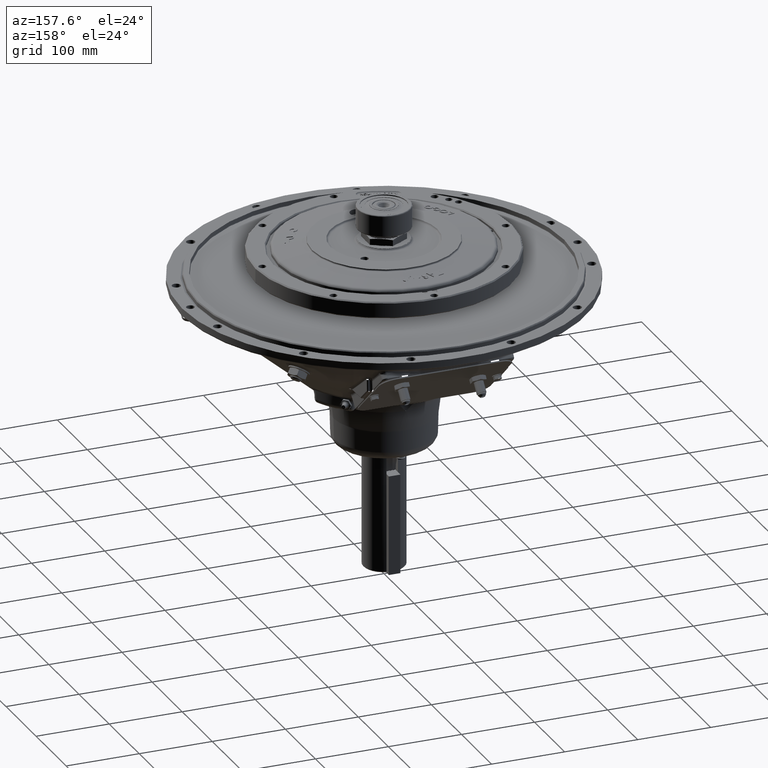
[diagram: clean part render]
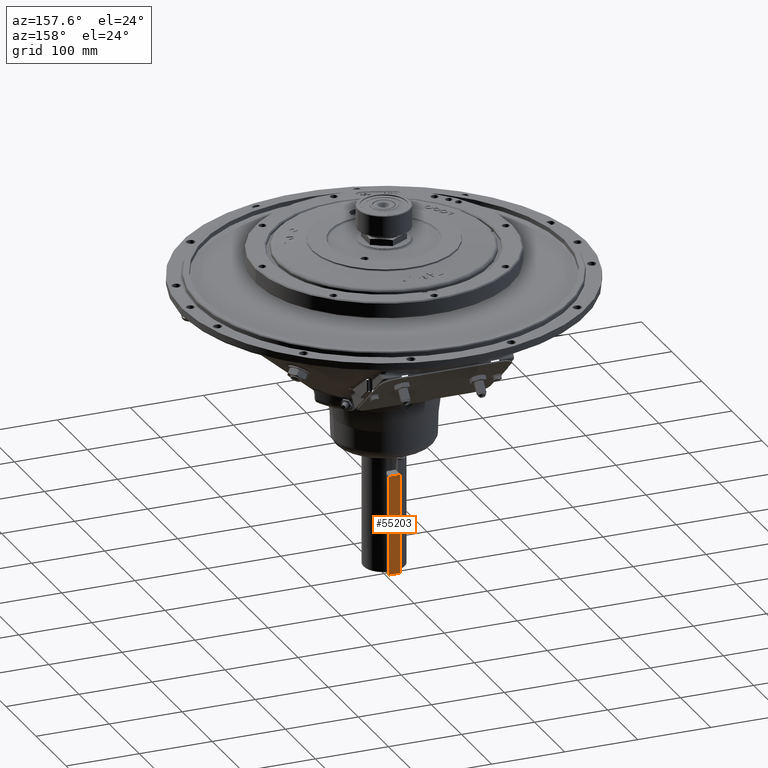
[diagram: same view with one face highlighted and labeled with its STEP entity id]
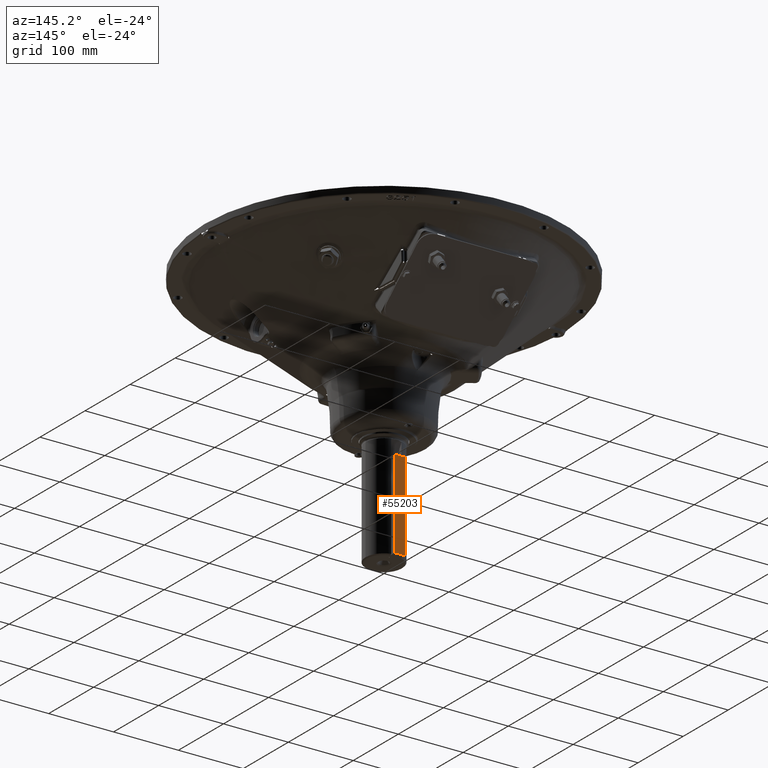
[diagram: same view with one face highlighted and labeled with its STEP entity id]
A machine part, auxiliary view. The second image highlights one B-rep face of the part: STEP entity #55203.
A second angle (auxiliary view) of the same face is appended — the face is thin or edge-on in the first view.
In plain terms, the highlighted planar face has unit normal (0, -1, 0).
Its self-contained STEP definition (entity closure, byte-faithful):
#3422 = CARTESIAN_POINT ( 'NONE',  ( 7.680325000000022900, 35.32377999999999900, -263.8780599999996600 ) ) ;
#3443 = DIRECTION ( 'NONE',  ( -0.0000000000000000000, -0.0000000000000000000, -1.000000000000000000 ) ) ;
#3452 = CARTESIAN_POINT ( 'NONE',  ( -7.686674999999973500, 35.32377999999999900, -400.4030599999997000 ) ) ;
#3454 = DIRECTION ( 'NONE',  ( -1.000000000000000000, -0.0000000000000000000, -0.0000000000000000000 ) ) ;
#3457 = CARTESIAN_POINT ( 'NONE',  ( -7.686674999999973500, 35.32377999999999900, -263.8780599999996600 ) ) ;
#3458 = DIRECTION ( 'NONE',  ( -1.000000000000000000, -0.0000000000000000000, -0.0000000000000000000 ) ) ;
#3462 = CARTESIAN_POINT ( 'NONE',  ( -7.686674999999973500, 35.32377999999999900, -263.8780599999996600 ) ) ;
#3464 = DIRECTION ( 'NONE',  ( -0.0000000000000000000, -0.0000000000000000000, -1.000000000000000000 ) ) ;
#20426 = CARTESIAN_POINT ( 'NONE',  ( -7.686674999999973500, 35.32377999999999900, -263.8780599999996600 ) ) ;
#20479 = CARTESIAN_POINT ( 'NONE',  ( 7.680325000000022900, 35.32377999999999900, -263.8780599999996600 ) ) ;
#23253 = VECTOR ( 'NONE', #3454, 1000.000000000000000 ) ;
#23259 = LINE ( 'NONE', #3422, #23263 ) ;
#23263 = VECTOR ( 'NONE', #3443, 1000.000000000000000 ) ;
#23264 = LINE ( 'NONE', #3452, #23253 ) ;
#23268 = LINE ( 'NONE', #3457, #23269 ) ;
#23269 = VECTOR ( 'NONE', #3458, 1000.000000000000000 ) ;
#23270 = LINE ( 'NONE', #3462, #23271 ) ;
#23271 = VECTOR ( 'NONE', #3464, 1000.000000000000000 ) ;
#24057 = CARTESIAN_POINT ( 'NONE',  ( -7.686674999999973500, 35.32377999999999900, -400.4030599999997000 ) ) ;
#24058 = CARTESIAN_POINT ( 'NONE',  ( 7.680325000000022900, 35.32377999999999900, -400.4030599999997000 ) ) ;
#27139 = CARTESIAN_POINT ( 'NONE',  ( -7.686674999999973500, 35.32377999999999900, -263.8780599999996600 ) ) ;
#27141 = PLANE ( 'NONE',  #38518 ) ;
#27152 = DIRECTION ( 'NONE',  ( 0.0000000000000000000, -1.000000000000000000, 0.0000000000000000000 ) ) ;
#27153 = DIRECTION ( 'NONE',  ( 0.0000000000000000000, -0.0000000000000000000, -1.000000000000000000 ) ) ;
#31712 = FACE_OUTER_BOUND ( 'NONE', #50141, .T. ) ;
#38518 = AXIS2_PLACEMENT_3D ( 'NONE', #27139, #27152, #27153 ) ;
#50141 = EDGE_LOOP ( 'NONE', ( #65132, #65131, #65133, #65134 ) ) ;
#55203 = ADVANCED_FACE ( 'NONE', ( #31712 ), #27141, .F. ) ;
#55513 = VERTEX_POINT ( 'NONE', #24057 ) ;
#55514 = VERTEX_POINT ( 'NONE', #24058 ) ;
#55921 = VERTEX_POINT ( 'NONE', #20426 ) ;
#55974 = VERTEX_POINT ( 'NONE', #20479 ) ;
#56166 = EDGE_CURVE ( 'NONE', #55974, #55514, #23259, .T. ) ;
#56168 = EDGE_CURVE ( 'NONE', #55514, #55513, #23264, .T. ) ;
#56169 = EDGE_CURVE ( 'NONE', #55974, #55921, #23268, .T. ) ;
#56170 = EDGE_CURVE ( 'NONE', #55921, #55513, #23270, .T. ) ;
#65131 = ORIENTED_EDGE ( 'NONE', *, *, #56170, .F. ) ;
#65132 = ORIENTED_EDGE ( 'NONE', *, *, #56168, .T. ) ;
#65133 = ORIENTED_EDGE ( 'NONE', *, *, #56169, .F. ) ;
#65134 = ORIENTED_EDGE ( 'NONE', *, *, #56166, .T. ) ;